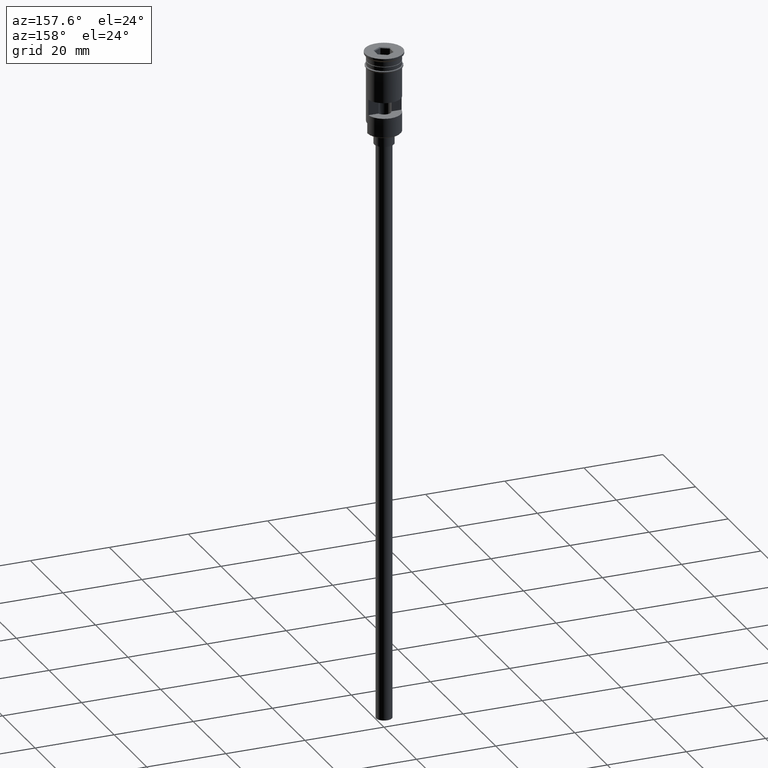
[diagram: clean part render]
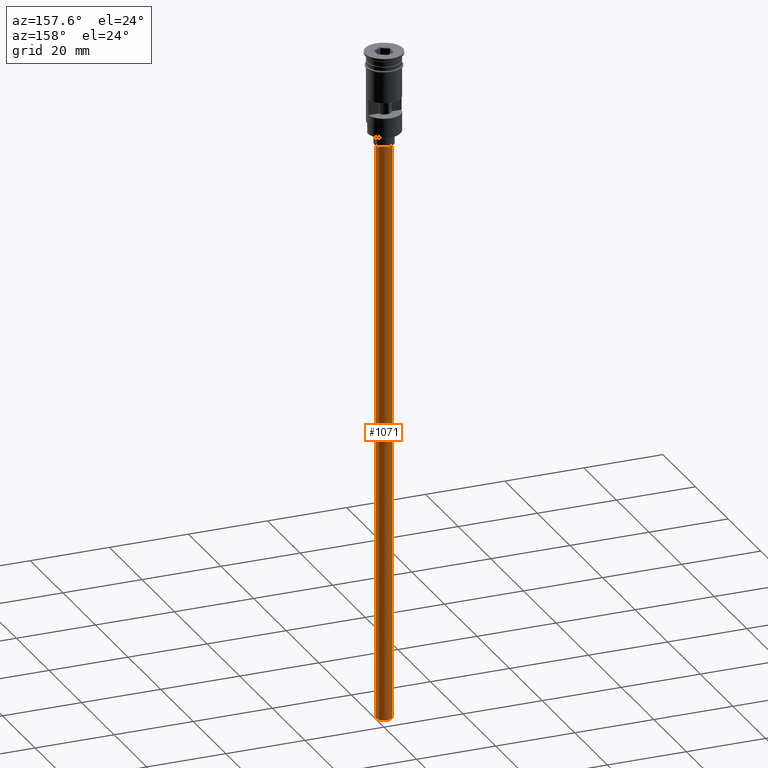
[diagram: same view with one face highlighted and labeled with its STEP entity id]
A machine part, auxiliary view. The second image highlights one B-rep face of the part: STEP entity #1071.
In plain terms, the highlighted cylindrical surface (edge-blend (fillet) strip) has radius 2 mm, axis along (-0, -0, 1).
Its self-contained STEP definition (entity closure, byte-faithful):
#76 = VERTEX_POINT ( 'NONE', #768 ) ;
#130 = CYLINDRICAL_SURFACE ( 'NONE', #1331, 2.000000000000000000 ) ;
#146 = DIRECTION ( 'NONE',  ( -1.000000000000000000, 0.000000000000000000, 0.000000000000000000 ) ) ;
#176 = DIRECTION ( 'NONE',  ( -0.000000000000000000, -0.000000000000000000, 1.000000000000000000 ) ) ;
#200 = EDGE_CURVE ( 'NONE', #1242, #856, #679, .T. ) ;
#214 = CARTESIAN_POINT ( 'NONE',  ( -2.000000000000000000, 2.449293598294706414E-16, -23.49999999999999645 ) ) ;
#261 = CARTESIAN_POINT ( 'NONE',  ( 0.000000000000000000, 0.000000000000000000, -23.49999999999999645 ) ) ;
#324 = CARTESIAN_POINT ( 'NONE',  ( -2.000000000000000000, 2.449293598294706414E-16, -170.4999999999999716 ) ) ;
#434 = DIRECTION ( 'NONE',  ( 1.000000000000000000, 0.000000000000000000, 0.000000000000000000 ) ) ;
#441 = EDGE_LOOP ( 'NONE', ( #1185, #691, #1458, #954 ) ) ;
#495 = CARTESIAN_POINT ( 'NONE',  ( -2.000000000000000000, 2.449293598294706414E-16, -170.4999999999999716 ) ) ;
#497 = FACE_OUTER_BOUND ( 'NONE', #441, .T. ) ;
#499 = CIRCLE ( 'NONE', #1281, 2.000000000000000000 ) ;
#530 = DIRECTION ( 'NONE',  ( -0.000000000000000000, -0.000000000000000000, 1.000000000000000000 ) ) ;
#663 = CARTESIAN_POINT ( 'NONE',  ( 2.000000000000000000, 0.000000000000000000, -170.4999999999999716 ) ) ;
#679 = CIRCLE ( 'NONE', #1553, 2.000000000000000000 ) ;
#691 = ORIENTED_EDGE ( 'NONE', *, *, #785, .T. ) ;
#733 = EDGE_CURVE ( 'NONE', #76, #856, #1408, .T. ) ;
#768 = CARTESIAN_POINT ( 'NONE',  ( 2.000000000000000000, 0.000000000000000000, -170.4999999999999716 ) ) ;
#785 = EDGE_CURVE ( 'NONE', #1476, #1242, #1573, .T. ) ;
#817 = CARTESIAN_POINT ( 'NONE',  ( 0.000000000000000000, 0.000000000000000000, -170.4999999999999716 ) ) ;
#825 = DIRECTION ( 'NONE',  ( -0.000000000000000000, -0.000000000000000000, 1.000000000000000000 ) ) ;
#856 = VERTEX_POINT ( 'NONE', #955 ) ;
#954 = ORIENTED_EDGE ( 'NONE', *, *, #733, .F. ) ;
#955 = CARTESIAN_POINT ( 'NONE',  ( 2.000000000000000000, 0.000000000000000000, -23.49999999999999645 ) ) ;
#995 = VECTOR ( 'NONE', #176, 1000.000000000000000 ) ;
#1021 = VECTOR ( 'NONE', #825, 1000.000000000000000 ) ;
#1071 = ADVANCED_FACE ( 'NONE', ( #497 ), #130, .T. ) ;
#1185 = ORIENTED_EDGE ( 'NONE', *, *, #1337, .F. ) ;
#1242 = VERTEX_POINT ( 'NONE', #214 ) ;
#1258 = DIRECTION ( 'NONE',  ( 0.000000000000000000, 0.000000000000000000, -1.000000000000000000 ) ) ;
#1281 = AXIS2_PLACEMENT_3D ( 'NONE', #817, #1322, #1578 ) ;
#1322 = DIRECTION ( 'NONE',  ( 0.000000000000000000, 0.000000000000000000, -1.000000000000000000 ) ) ;
#1331 = AXIS2_PLACEMENT_3D ( 'NONE', #1368, #530, #434 ) ;
#1337 = EDGE_CURVE ( 'NONE', #1476, #76, #499, .T. ) ;
#1368 = CARTESIAN_POINT ( 'NONE',  ( 0.000000000000000000, 0.000000000000000000, -170.4999999999999716 ) ) ;
#1408 = LINE ( 'NONE', #663, #995 ) ;
#1458 = ORIENTED_EDGE ( 'NONE', *, *, #200, .T. ) ;
#1476 = VERTEX_POINT ( 'NONE', #495 ) ;
#1553 = AXIS2_PLACEMENT_3D ( 'NONE', #261, #1258, #146 ) ;
#1573 = LINE ( 'NONE', #324, #1021 ) ;
#1578 = DIRECTION ( 'NONE',  ( -1.000000000000000000, 0.000000000000000000, 0.000000000000000000 ) ) ;